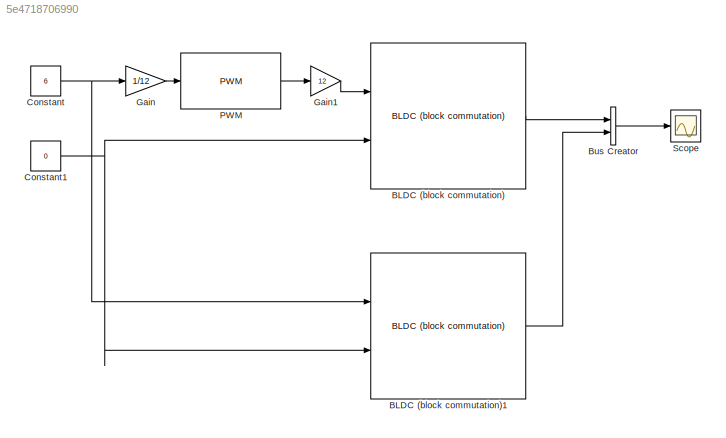
MODEL slx_5e4718706990
KIND model
BLOCK [Reference] BLDC (block commutation)  REF=BLDC/BLDC (block commutation)
  J = 1.39e-6
  Kd = 0
  Ke = 15.7e-3/1.19
  Kt = 15.7e-3/1.19
  L = 2.04/2000
  P = 8
  Ports = [2, 3]
  R = 10.1/2
  SourceBlock = BLDC/BLDC (block commutation)
  SourceType = Simulador BLDC (block commutation)
BLOCK [Reference] BLDC (block commutation)1  REF=BLDC/BLDC (block commutation)
  J = 1.39e-6
  Kd = 0
  Ke = 15.7e-3/1.19
  Kt = 15.7e-3/1.19
  L = 2.04/2000
  P = 8
  Ports = [2, 3]
  R = 10.1/2
  SourceBlock = BLDC/BLDC (block commutation)
  SourceType = Simulador BLDC (block commutation)
BLOCK [BusCreator] Bus Creator
  DisplayOption = bar
  Inputs = 2
  Ports = [2, 1]
BLOCK [Constant] Constant
  Value = 6
BLOCK [Constant] Constant1
  Value = 0
BLOCK [Gain] Gain
  Gain = 1/12
  OutDataTypeStr = Inherit: Inherit via internal rule
  ParamDataTypeStr = Inherit: Inherit via internal rule
  SaturateOnIntegerOverflow = off
BLOCK [Gain] Gain1
  Gain = 12
  OutDataTypeStr = Inherit: Inherit via internal rule
  ParamDataTypeStr = Inherit: Inherit via internal rule
  SaturateOnIntegerOverflow = off
BLOCK [Reference] PWM  REF=Tools/PWM
  Ports = [1, 1]
  SourceBlock = Tools/PWM
  f = 10000
BLOCK [Scope] Scope
  DataFormat = StructureWithTime
  Floating = off
  LimitDataPoints = off
  NumInputPorts = 1
  Ports = [1]
  SampleTime = 0
  SaveName = ScopeData1
  ShowLegends = off
LINE BLDC (block commutation)1:2 -> Bus Creator:2
LINE BLDC (block commutation):2 -> Bus Creator:1
LINE Bus Creator:1 -> Scope:1
NET Constant1:1 -> BLDC (block commutation)1:2, BLDC (block commutation):2
NET Constant:1 -> BLDC (block commutation)1:1, Gain:1
LINE Gain1:1 -> BLDC (block commutation):1
LINE Gain:1 -> PWM:1
LINE PWM:1 -> Gain1:1
note: NET lines group one-source signal fan-out (src -> all destinations, sorted); 1:1 wires keep LINE
